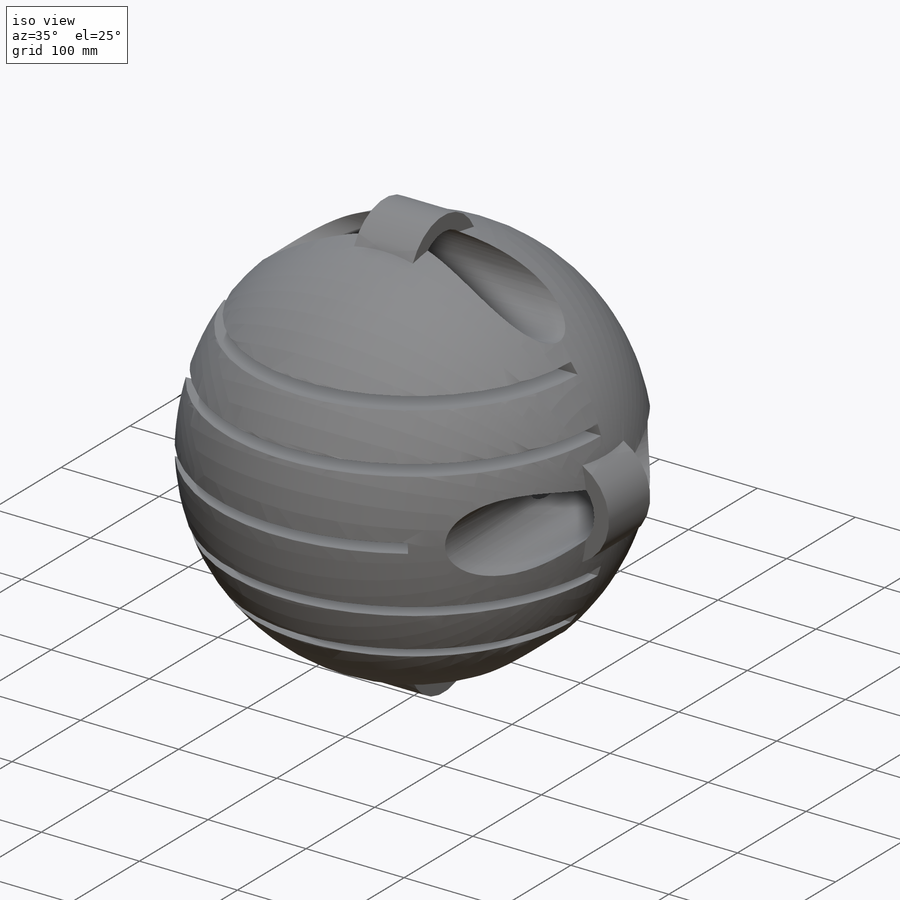
[diagram: iso view]
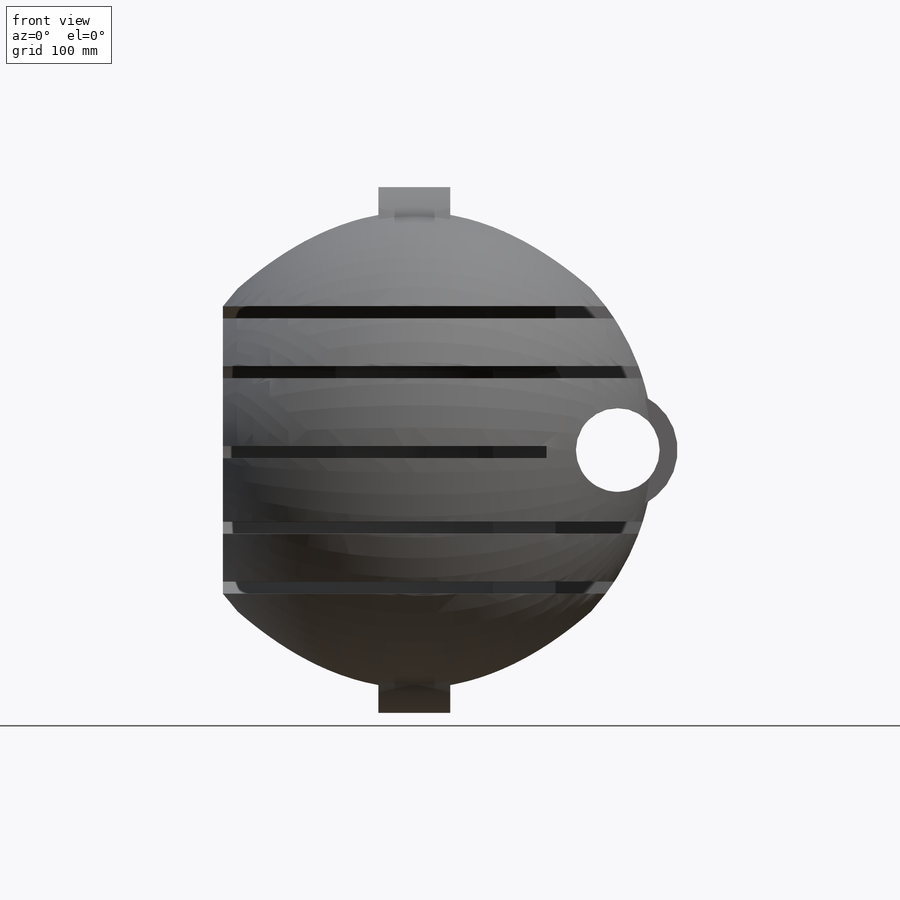
[diagram: front view]
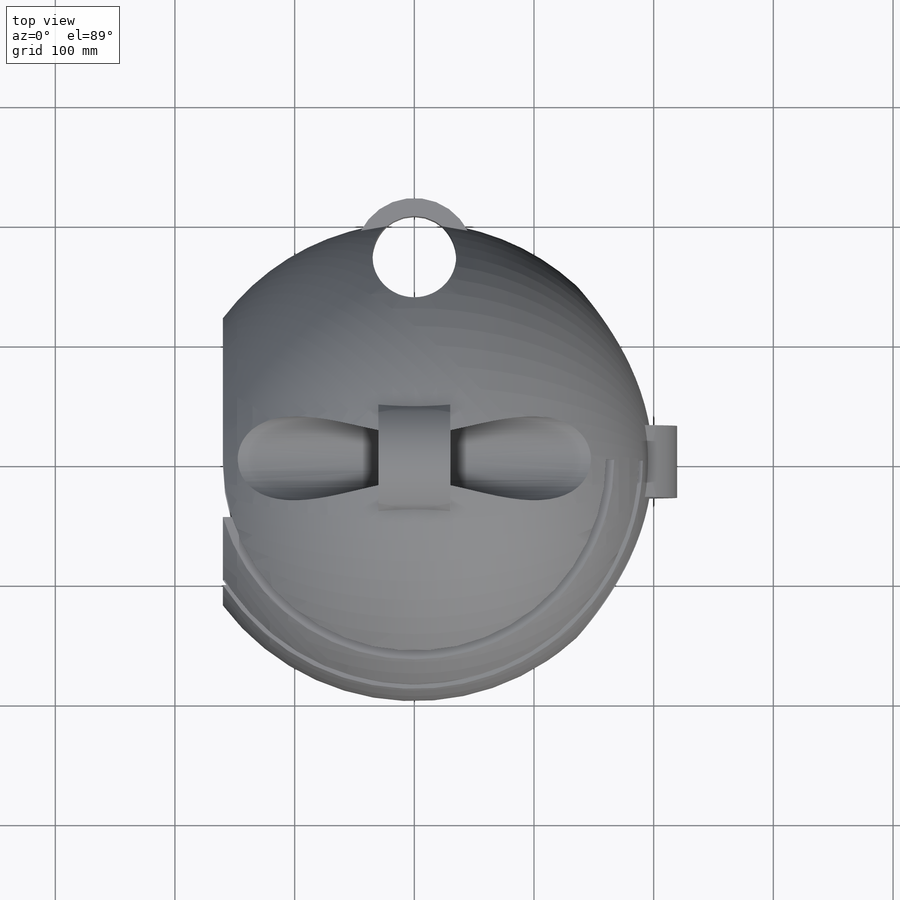
[diagram: top view]
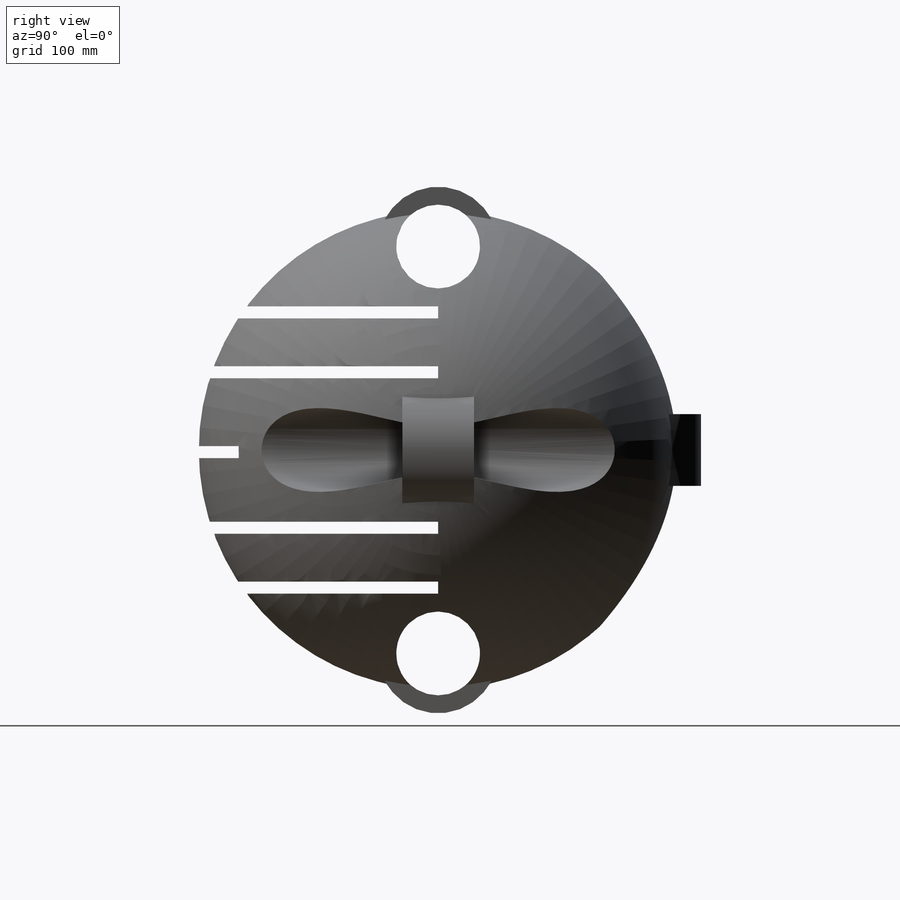
[diagram: right view]
SOLIDWORKS PART (.sldprt)
format: sldprt  version: not decoded by parser v0  size: 537,088 bytes
history: native  units: mm
features: sketch x21, cut_extrude x10, extrude x9, plane x3, material x1, revolve x1, cut_revolve x1 (+8 scaffold rows collapsed)
feature tree (54):
  scaffold x8  (default folders/planes/origin — collapsed)
  material  "Material <sin especificar>"
  plane  "Alzado"
  plane  "Planta"
  plane  "Vista lateral"
  sketch  "Croquis2"  dims[D1=400.0mm]
  revolve  "Revolución2"  Angle=360deg
  sketch  "Croquis6"  dims[D1=400.0mm D2=400.0mm D3=30.0mm D4=30.0mm D5=30.0mm]
  extrude  "Saliente-Extruir1"  [1 undecoded]
  sketch  "Croquis8"  dims[D1=~43.523474mm]
  cut_extrude  "Cortar-Extruir5"  [1 undecoded]
  sketch  "Croquis9"  dims[D4=~49.33486mm D1=400.0mm D2=400.0mm D3=30.0mm]
  extrude  "Saliente-Extruir2"  [1 undecoded]
  sketch  "Croquis10"
  cut_extrude  "Cortar-Extruir6"  [1 undecoded]
  sketch  "Croquis11"  dims[D4=~44.250989mm D1=400.0mm D2=400.0mm D3=30.0mm]
  extrude  "Saliente-Extruir3"  [1 undecoded]
  sketch  "Croquis12"
  cut_extrude  "Cortar-Extruir7"  [1 undecoded]
  sketch  "Croquis13"  dims[D4=~43.212214mm D1=400.0mm D2=400.0mm D3=30.0mm]
  extrude  "Saliente-Extruir5"  Depth=30mm
  sketch  "Croquis14"
  extrude  "Saliente-Extruir7"  Depth=60mm
  sketch  "Croquis16"
  cut_extrude  "Cortar-Extruir10"  Depth=60mm
  sketch  "Croquis19"  dims[c1.D4=~42.484275mm c1.D1=400.0mm c1.D2=400.0mm c1.D3=30.0mm c2.D1=30.0mm]
  extrude  "Saliente-Extruir10"  Depth=30mm
  sketch  "Croquis22"
  extrude  "Saliente-Extruir11"  Depth=30mm
  sketch  "Croquis23"
  cut_extrude  "Cortar-Extruir12"  [1 undecoded]
  sketch  "Croquis24"  dims[D4=~55.115047mm D1=400.0mm D2=400.0mm D3=30.0mm]
  extrude  "Saliente-Extruir12"  Depth=30mm
  sketch  "Croquis25"
  extrude  "Saliente-Extruir13"  Depth=30mm
  sketch  "Croquis26"
  cut_extrude  "Cortar-Extruir13"  [1 undecoded]
  sketch  "Croquis27"  dims[D1=~111.645664mm]
  cut_extrude  "Cortar-Extruir14"  Depth=273mm
  sketch  "Croquis28"
  cut_extrude  "Cortar-Extruir15"  Depth=118mm
  sketch  "Croquis29"  dims[D1=400.0mm D2=400.0mm D3=10.0mm D4=40.0mm D5=10.0mm D6=15.0mm D7=15.0mm D8=10.0mm D9=40.0mm D10=10.0mm]
  cut_extrude  "Cortar-Extruir16"  [1 undecoded]
  sketch  "Croquis30"
  cut_revolve  "Cortar-Revolución8"  Angle=360deg
  sketch  "Croquis32"  dims[D1=10.0mm]
  cut_extrude  "Cortar-Extruir18"  [1 undecoded]
decode coverage: 22 of 42 modeling features carry decoded parameters
note: ~ marks probable driven/reference dimensions
note: 10 parameter values undecoded
summary: no parameter record found for 10 features
note: suppression state not decoded; provenance and decode notes live in map.json
